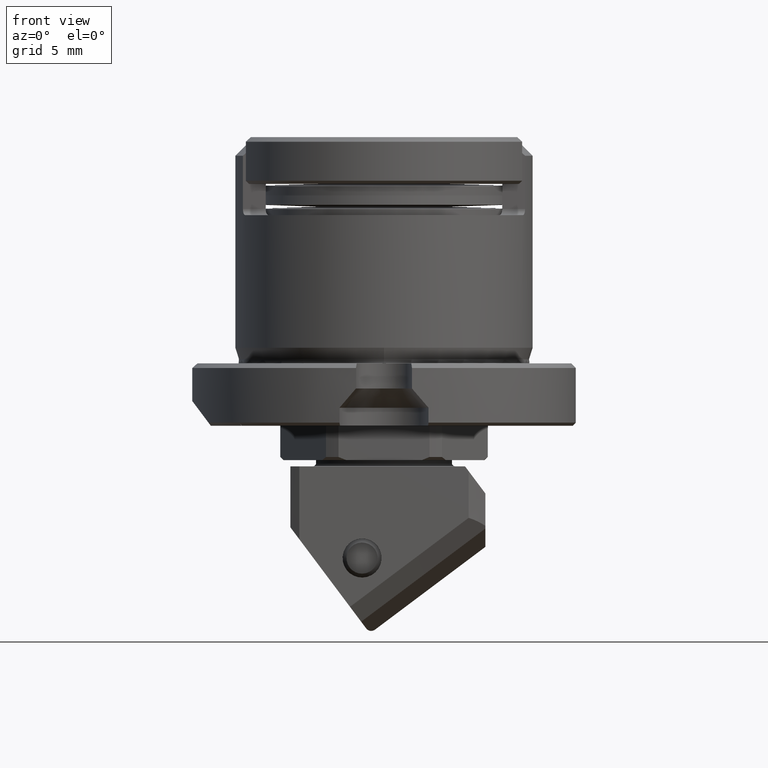
[diagram: clean part render]
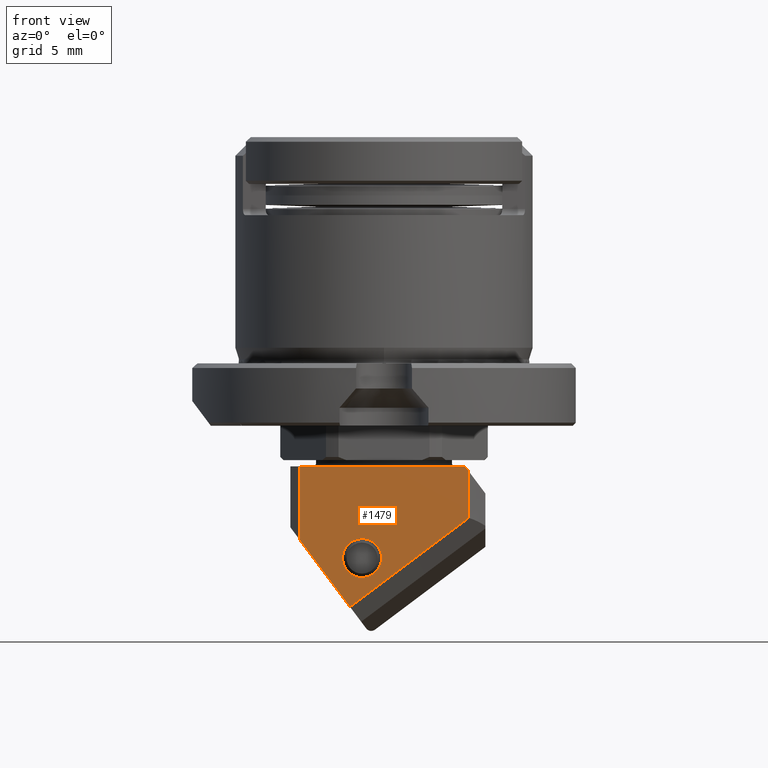
[diagram: same view with one face highlighted and labeled with its STEP entity id]
A machine part, front view. The second image highlights one B-rep face of the part: STEP entity #1479.
In plain terms, the highlighted planar face has unit normal (0, 1, 0).
Its self-contained STEP definition (entity closure, byte-faithful):
#1479=ADVANCED_FACE('',(#3076,#3077),#2406,.F.);
#2406=PLANE('',#17850);
#3076=FACE_BOUND('',#3148,.T.);
#3077=FACE_BOUND('',#3149,.T.);
#3148=EDGE_LOOP('',(#4623,#4624,#4625,#4626,#4627,#4628));
#3149=EDGE_LOOP('',(#4629,#4630));
#4115=CIRCLE('',#17848,1.249999999999);
#4116=CIRCLE('',#17849,1.249999999999);
#4623=ORIENTED_EDGE('',*,*,#11362,.F.);
#4624=ORIENTED_EDGE('',*,*,#11361,.F.);
#4625=ORIENTED_EDGE('',*,*,#11352,.F.);
#4626=ORIENTED_EDGE('',*,*,#11363,.F.);
#4627=ORIENTED_EDGE('',*,*,#11364,.T.);
#4628=ORIENTED_EDGE('',*,*,#11365,.T.);
#4629=ORIENTED_EDGE('',*,*,#11366,.F.);
#4630=ORIENTED_EDGE('',*,*,#11367,.F.);
#9694=VERTEX_POINT('',#24178);
#9695=VERTEX_POINT('',#24180);
#9698=VERTEX_POINT('',#24188);
#9703=VERTEX_POINT('',#24200);
#9704=VERTEX_POINT('',#24202);
#9705=VERTEX_POINT('',#24204);
#9706=VERTEX_POINT('',#24207);
#9707=VERTEX_POINT('',#24208);
#11352=EDGE_CURVE('',#9694,#9695,#13892,.T.);
#11361=EDGE_CURVE('',#9695,#9698,#13897,.T.);
#11362=EDGE_CURVE('',#9698,#9703,#13898,.T.);
#11363=EDGE_CURVE('',#9704,#9694,#13899,.T.);
#11364=EDGE_CURVE('',#9704,#9705,#13900,.T.);
#11365=EDGE_CURVE('',#9705,#9703,#13901,.T.);
#11366=EDGE_CURVE('',#9706,#9707,#4115,.T.);
#11367=EDGE_CURVE('',#9707,#9706,#4116,.T.);
#13892=LINE('',#24179,#15735);
#13897=LINE('',#24197,#15740);
#13898=LINE('',#24199,#15741);
#13899=LINE('',#24201,#15742);
#13900=LINE('',#24203,#15743);
#13901=LINE('',#24205,#15744);
#15735=VECTOR('',#19388,1.);
#15740=VECTOR('',#19403,1.);
#15741=VECTOR('',#19406,1.);
#15742=VECTOR('',#19407,1.);
#15743=VECTOR('',#19408,1.);
#15744=VECTOR('',#19409,1.);
#17848=AXIS2_PLACEMENT_3D('',#24206,#19410,#19411);
#17849=AXIS2_PLACEMENT_3D('',#24209,#19412,#19413);
#17850=AXIS2_PLACEMENT_3D('',#24210,#19414,#19415);
#19388=DIRECTION('',(1.,0.,0.));
#19403=DIRECTION('',(0.599954886066585,0.,-0.80003383346258));
#19406=DIRECTION('',(7.946348636129E-14,0.,-1.));
#19407=DIRECTION('',(-5.238441972538E-14,0.,1.));
#19408=DIRECTION('',(0.599954886066297,1.07276476974799E-13,-0.800033833462796));
#19409=DIRECTION('',(0.800033833462796,-6.96310477211896E-14,0.599954886066297));
#19410=DIRECTION('',(0.,-1.,0.));
#19411=DIRECTION('',(0.800033833462796,0.,0.599954886066296));
#19412=DIRECTION('',(0.,-1.,0.));
#19413=DIRECTION('',(-0.800033833462796,0.,-0.599954886066296));
#19414=DIRECTION('',(0.,1.,0.));
#19415=DIRECTION('',(-0.800033833462844,0.,-0.599954886066233));
#24178=CARTESIAN_POINT('',(-5.423098745183,-7.8,-6.6));
#24179=CARTESIAN_POINT('',(-5.423098745183,-7.8,-6.6));
#24180=CARTESIAN_POINT('',(5.19202890989,-7.8,-6.6));
#24188=CARTESIAN_POINT('',(5.42309874518277,-7.8,-6.90812931175352));
#24197=CARTESIAN_POINT('',(5.19202890989,-7.8,-6.6));
#24199=CARTESIAN_POINT('',(5.423098745183,-7.8,-6.908129311753));
#24200=CARTESIAN_POINT('',(5.42309874518325,-7.79999999999983,-9.90361601110739));
#24201=CARTESIAN_POINT('',(-5.423098745183,-7.8,-11.27958307303));
#24202=CARTESIAN_POINT('',(-5.423098745183,-7.8,-11.27958307303));
#24203=CARTESIAN_POINT('',(-5.423098745183,-7.8,-11.27958307303));
#24204=CARTESIAN_POINT('',(-2.179497263768,-7.799999999999,-15.60489317162));
#24205=CARTESIAN_POINT('',(-2.179497263768,-7.799999999999,-15.60489317162));
#24206=CARTESIAN_POINT('',(-1.405515886604,-7.8,-12.48114261083));
#24207=CARTESIAN_POINT('',(-0.4054735947766,-7.8,-11.73119900325));
#24208=CARTESIAN_POINT('',(-2.405558178431,-7.8,-13.23108621841));
#24209=CARTESIAN_POINT('',(-1.405515886604,-7.8,-12.48114261083));
#24210=CARTESIAN_POINT('',(-0.4041698315549,-7.8,-8.554899768803));